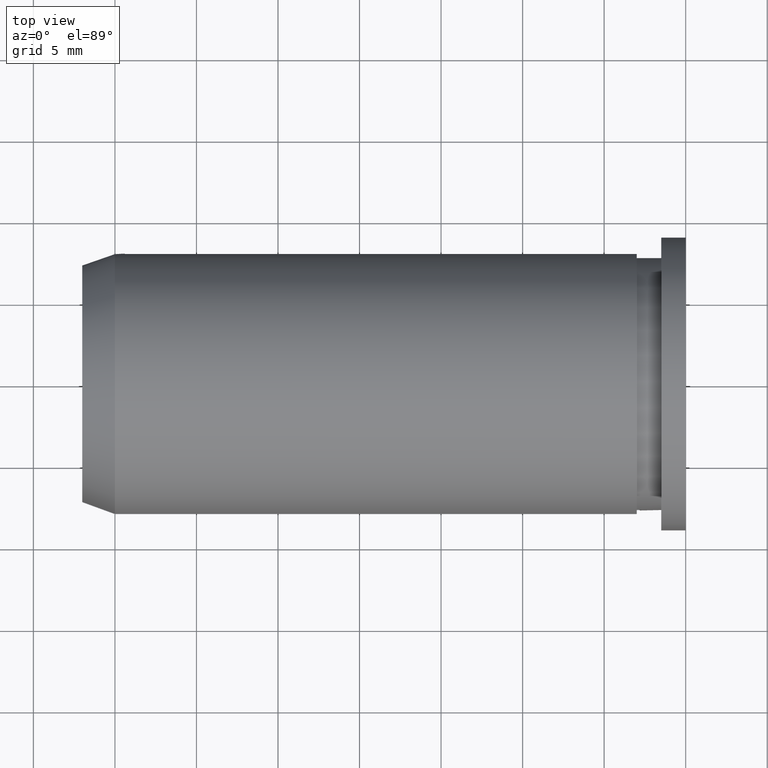
[diagram: clean part render]
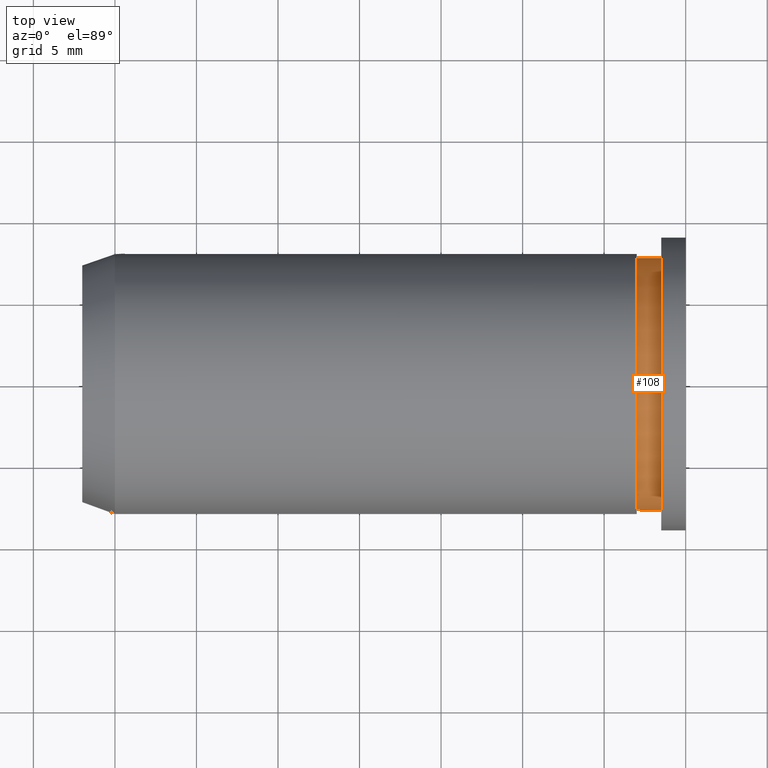
[diagram: same view with one face highlighted and labeled with its STEP entity id]
A machine part, top view. The second image highlights one B-rep face of the part: STEP entity #108.
In plain terms, the highlighted cylindrical surface (partial cylindrical patch) has radius 7.75 mm, axis along (-1, -0, -0).
Its self-contained STEP definition (entity closure, byte-faithful):
#6 = ORIENTED_EDGE ( 'NONE', *, *, #486, .F. ) ;
#7 = AXIS2_PLACEMENT_3D ( 'NONE', #354, #545, #296 ) ;
#16 = CARTESIAN_POINT ( 'NONE',  ( -2.831950108100726100, -7.713624310270756000, -0.7500000000000000000 ) ) ;
#21 = EDGE_CURVE ( 'NONE', #207, #396, #124, .T. ) ;
#25 = CARTESIAN_POINT ( 'NONE',  ( -2.831950108100726100, -7.713624310270756000, 0.7500000000000000000 ) ) ;
#56 = ORIENTED_EDGE ( 'NONE', *, *, #127, .T. ) ;
#57 = DIRECTION ( 'NONE',  ( 0.0000000000000000000, 0.0000000000000000000, 1.000000000000000000 ) ) ;
#84 = FACE_OUTER_BOUND ( 'NONE', #529, .T. ) ;
#108 = ADVANCED_FACE ( 'NONE', ( #84 ), #332, .T. ) ;
#117 = CARTESIAN_POINT ( 'NONE',  ( -3.000000000000002700, 7.713624310270756000, -0.7500000000000000000 ) ) ;
#124 = CIRCLE ( 'NONE', #245, 7.750000000000000000 ) ;
#127 = EDGE_CURVE ( 'NONE', #472, #396, #467, .T. ) ;
#128 = VERTEX_POINT ( 'NONE', #157 ) ;
#129 = DIRECTION ( 'NONE',  ( 1.000000000000000000, 0.0000000000000000000, 0.0000000000000000000 ) ) ;
#150 = EDGE_CURVE ( 'NONE', #565, #128, #602, .T. ) ;
#157 = CARTESIAN_POINT ( 'NONE',  ( -1.500000000000001300, 7.713624310270756000, 0.7500000000000000000 ) ) ;
#158 = VERTEX_POINT ( 'NONE', #259 ) ;
#166 = CARTESIAN_POINT ( 'NONE',  ( -2.789253922157725700, -7.762239589537167600, -0.2500000000000003300 ) ) ;
#172 = CARTESIAN_POINT ( 'NONE',  ( -2.789253922157725300, -7.762239589537167600, 0.2500000000000000000 ) ) ;
#188 = CARTESIAN_POINT ( 'NONE',  ( -2.831950108100726100, -7.713624310270756000, 0.7500000000000000000 ) ) ;
#190 = VECTOR ( 'NONE', #216, 1000.000000000000000 ) ;
#192 = DIRECTION ( 'NONE',  ( -1.000000000000000000, -0.0000000000000000000, -0.0000000000000000000 ) ) ;
#203 = CARTESIAN_POINT ( 'NONE',  ( -1.500000000000001300, 0.0000000000000000000, 0.0000000000000000000 ) ) ;
#207 = VERTEX_POINT ( 'NONE', #117 ) ;
#216 = DIRECTION ( 'NONE',  ( -1.000000000000000000, -0.0000000000000000000, -0.0000000000000000000 ) ) ;
#242 = CIRCLE ( 'NONE', #355, 7.750000000000000000 ) ;
#245 = AXIS2_PLACEMENT_3D ( 'NONE', #457, #192, #57 ) ;
#259 = CARTESIAN_POINT ( 'NONE',  ( -1.500000000000001300, 7.713624310270756000, -0.7500000000000000000 ) ) ;
#278 = EDGE_CURVE ( 'NONE', #501, #472, #572, .T. ) ;
#292 = CIRCLE ( 'NONE', #400, 7.750000000000000000 ) ;
#296 = DIRECTION ( 'NONE',  ( 0.0000000000000000000, 0.0000000000000000000, 1.000000000000000000 ) ) ;
#317 = ORIENTED_EDGE ( 'NONE', *, *, #642, .T. ) ;
#332 = CYLINDRICAL_SURFACE ( 'NONE', #7, 7.750000000000000000 ) ;
#333 = ORIENTED_EDGE ( 'NONE', *, *, #387, .T. ) ;
#337 = CARTESIAN_POINT ( 'NONE',  ( -2.831950108100726100, -7.713624310270756000, -0.7500000000000000000 ) ) ;
#338 = EDGE_CURVE ( 'NONE', #501, #509, #348, .T. ) ;
#341 = CARTESIAN_POINT ( 'NONE',  ( -3.000000000000002700, -7.713624310270756000, 0.7500000000000000000 ) ) ;
#343 = CARTESIAN_POINT ( 'NONE',  ( -3.000000000000002700, 7.713624310270756000, 0.7500000000000000000 ) ) ;
#346 = DIRECTION ( 'NONE',  ( -1.000000000000000000, -0.0000000000000000000, -0.0000000000000000000 ) ) ;
#348 = LINE ( 'NONE', #628, #190 ) ;
#354 = CARTESIAN_POINT ( 'NONE',  ( -38.58775536857143600, 0.0000000000000000000, 0.0000000000000000000 ) ) ;
#355 = AXIS2_PLACEMENT_3D ( 'NONE', #542, #548, #449 ) ;
#358 = LINE ( 'NONE', #475, #637 ) ;
#359 = ORIENTED_EDGE ( 'NONE', *, *, #150, .F. ) ;
#363 = VECTOR ( 'NONE', #346, 1000.000000000000000 ) ;
#369 = VECTOR ( 'NONE', #403, 1000.000000000000000 ) ;
#387 = EDGE_CURVE ( 'NONE', #207, #158, #358, .T. ) ;
#396 = VERTEX_POINT ( 'NONE', #438 ) ;
#400 = AXIS2_PLACEMENT_3D ( 'NONE', #203, #561, #506 ) ;
#403 = DIRECTION ( 'NONE',  ( 1.000000000000000000, 0.0000000000000000000, 0.0000000000000000000 ) ) ;
#436 = ORIENTED_EDGE ( 'NONE', *, *, #338, .F. ) ;
#438 = CARTESIAN_POINT ( 'NONE',  ( -3.000000000000002700, -7.713624310270756000, -0.7500000000000000000 ) ) ;
#439 = ORIENTED_EDGE ( 'NONE', *, *, #21, .F. ) ;
#449 = DIRECTION ( 'NONE',  ( 0.0000000000000000000, 0.0000000000000000000, 1.000000000000000000 ) ) ;
#457 = CARTESIAN_POINT ( 'NONE',  ( -3.000000000000002700, 0.0000000000000000000, 0.0000000000000000000 ) ) ;
#467 = LINE ( 'NONE', #502, #363 ) ;
#472 = VERTEX_POINT ( 'NONE', #337 ) ;
#475 = CARTESIAN_POINT ( 'NONE',  ( -38.58775536857143600, 7.713624310270756000, -0.7500000000000000000 ) ) ;
#486 = EDGE_CURVE ( 'NONE', #509, #565, #242, .T. ) ;
#501 = VERTEX_POINT ( 'NONE', #188 ) ;
#502 = CARTESIAN_POINT ( 'NONE',  ( -38.58775536857143600, -7.713624310270756000, -0.7500000000000000000 ) ) ;
#506 = DIRECTION ( 'NONE',  ( 0.0000000000000000000, 0.0000000000000000000, 1.000000000000000000 ) ) ;
#509 = VERTEX_POINT ( 'NONE', #341 ) ;
#529 = EDGE_LOOP ( 'NONE', ( #439, #333, #317, #359, #6, #436, #570, #56 ) ) ;
#542 = CARTESIAN_POINT ( 'NONE',  ( -3.000000000000002700, 0.0000000000000000000, 0.0000000000000000000 ) ) ;
#545 = DIRECTION ( 'NONE',  ( -1.000000000000000000, -0.0000000000000000000, -0.0000000000000000000 ) ) ;
#548 = DIRECTION ( 'NONE',  ( -1.000000000000000000, -0.0000000000000000000, -0.0000000000000000000 ) ) ;
#561 = DIRECTION ( 'NONE',  ( -1.000000000000000000, -0.0000000000000000000, -0.0000000000000000000 ) ) ;
#565 = VERTEX_POINT ( 'NONE', #343 ) ;
#570 = ORIENTED_EDGE ( 'NONE', *, *, #278, .T. ) ;
#572 = B_SPLINE_CURVE_WITH_KNOTS ( 'NONE', 3,
 ( #25, #172, #166, #16 ),
 .UNSPECIFIED., .F., .F.,
 ( 4, 4 ),
 ( 0.0000000000000000000, 0.001500000000000000000 ),
 .UNSPECIFIED. ) ;
#602 = LINE ( 'NONE', #608, #369 ) ;
#608 = CARTESIAN_POINT ( 'NONE',  ( -38.58775536857143600, 7.713624310270756000, 0.7500000000000000000 ) ) ;
#628 = CARTESIAN_POINT ( 'NONE',  ( -38.58775536857143600, -7.713624310270756000, 0.7500000000000000000 ) ) ;
#637 = VECTOR ( 'NONE', #129, 1000.000000000000000 ) ;
#642 = EDGE_CURVE ( 'NONE', #158, #128, #292, .T. ) ;